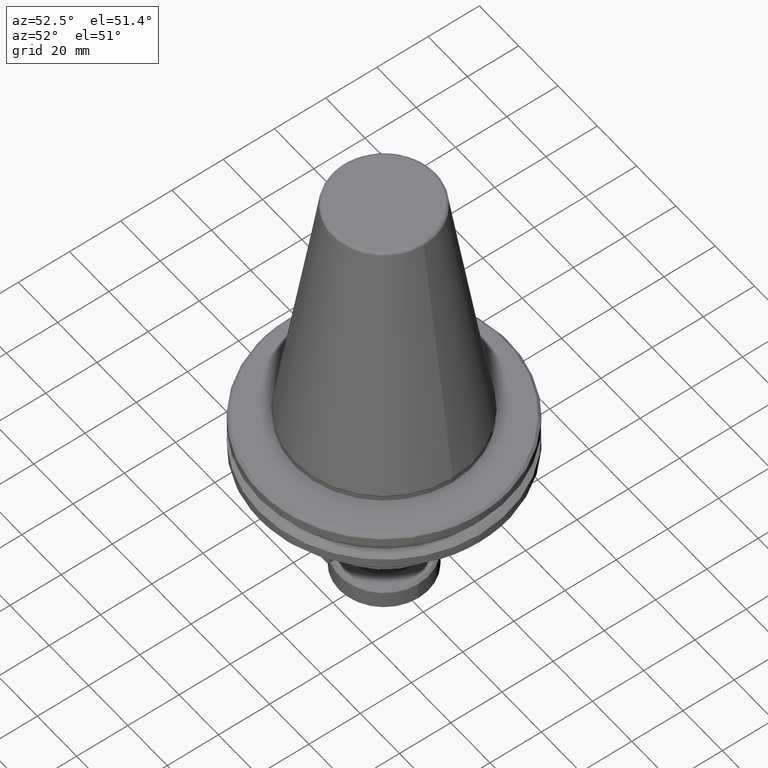
[diagram: clean part render]
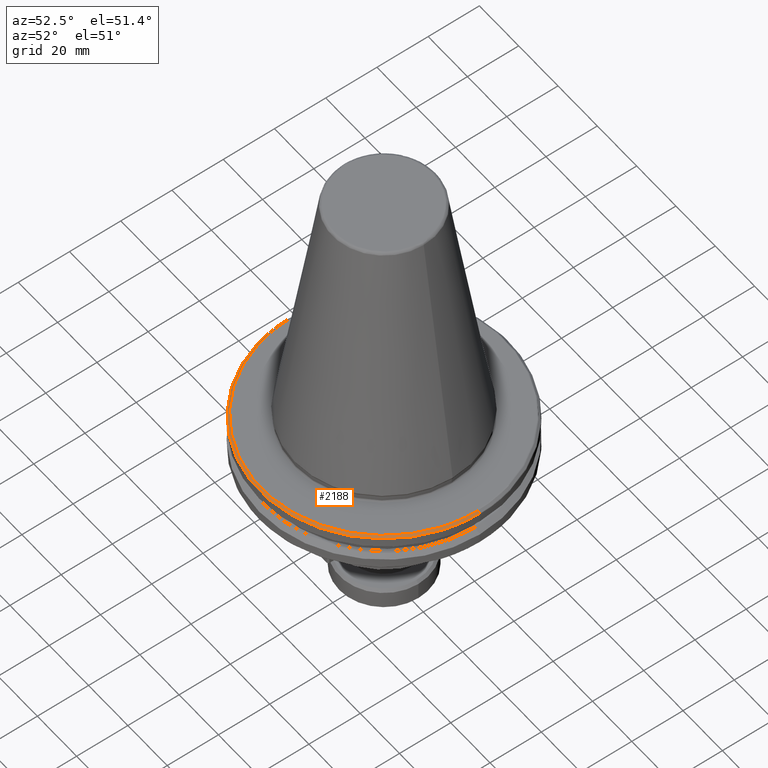
[diagram: same view with one face highlighted and labeled with its STEP entity id]
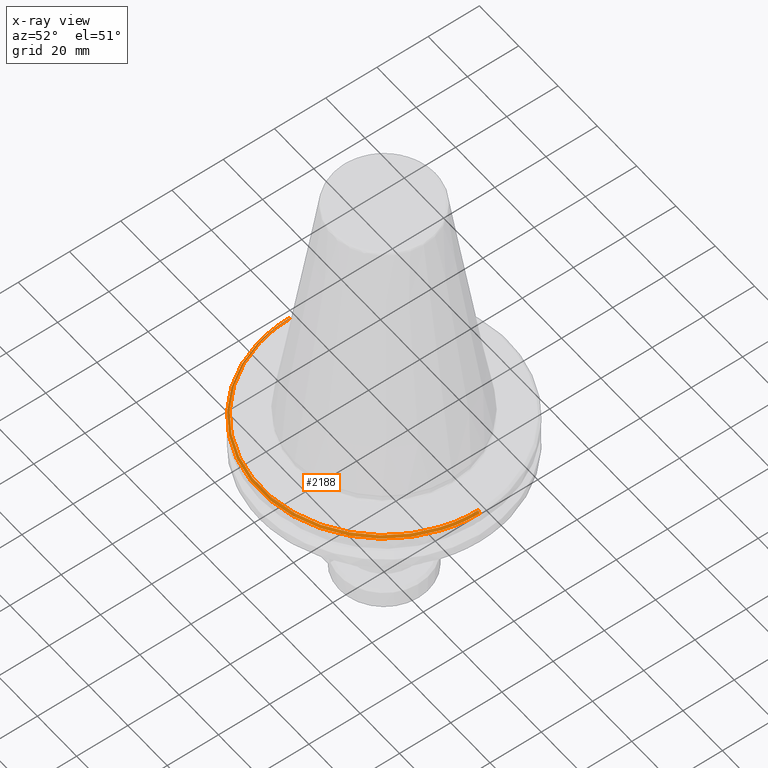
[diagram: x-ray of the same camera — body ghosted, the highlighted face saturated]
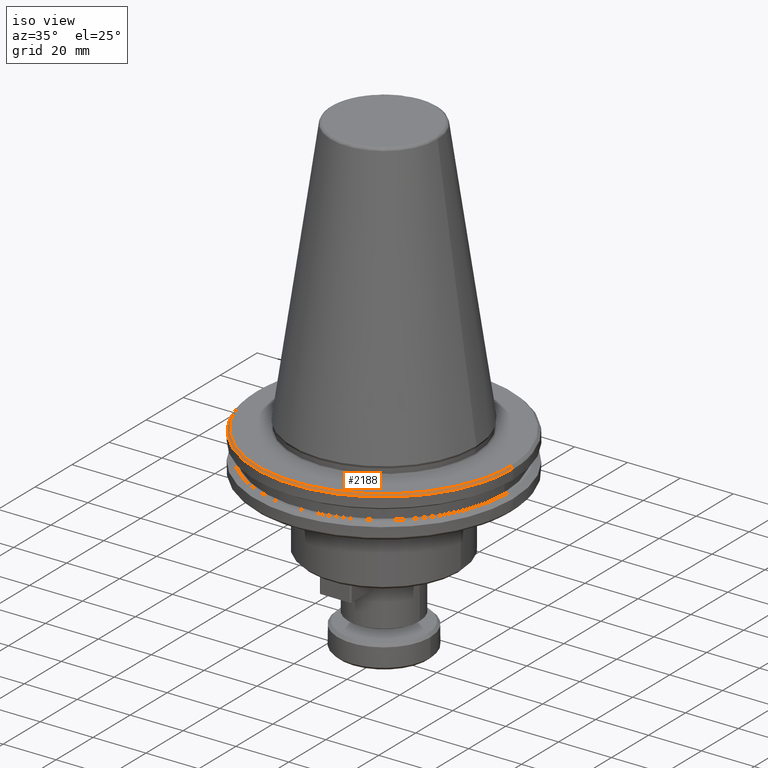
[diagram: same view with one face highlighted and labeled with its STEP entity id]
A machine part, auxiliary view. The second image highlights one B-rep face of the part: STEP entity #2188.
The next image is the same camera in x-ray: the body ghosted, the highlighted face saturated — about 0% of this face is hidden behind the body in this view.
A second angle (iso view) of the same face is appended — the face is thin or edge-on in the first view.
In plain terms, the highlighted conical surface has half-angle 45 deg.
Its self-contained STEP definition (entity closure, byte-faithful):
#53 = DIRECTION ( 'NONE',  ( -0.0000000000000000000, -0.0000000000000000000, 1.000000000000000000 ) ) ;
#126 = CIRCLE ( 'NONE', #1129, 47.86715728752538700 ) ;
#296 = CIRCLE ( 'NONE', #3582, 48.63284271247462000 ) ;
#309 = DIRECTION ( 'NONE',  ( -1.000000000000000000, 0.0000000000000000000, 0.0000000000000000000 ) ) ;
#495 = CARTESIAN_POINT ( 'NONE',  ( 0.0000000000000000000, 0.0000000000000000000, -4.082842712474610300 ) ) ;
#607 = DIRECTION ( 'NONE',  ( -1.000000000000000000, 0.0000000000000000000, 0.0000000000000000000 ) ) ;
#621 = DIRECTION ( 'NONE',  ( -0.0000000000000000000, -0.0000000000000000000, -1.000000000000000000 ) ) ;
#622 = CARTESIAN_POINT ( 'NONE',  ( 0.0000000000000000000, 0.0000000000000000000, -3.317157287525379400 ) ) ;
#785 = DIRECTION ( 'NONE',  ( -1.000000000000000000, 0.0000000000000000000, 0.0000000000000000000 ) ) ;
#795 = ORIENTED_EDGE ( 'NONE', *, *, #1842, .T. ) ;
#797 = DIRECTION ( 'NONE',  ( 0.0000000000000000000, 0.0000000000000000000, -1.000000000000000000 ) ) ;
#866 = VERTEX_POINT ( 'NONE', #3418 ) ;
#922 = ORIENTED_EDGE ( 'NONE', *, *, #2128, .F. ) ;
#1021 = EDGE_CURVE ( 'NONE', #1218, #3126, #1788, .T. ) ;
#1083 = CARTESIAN_POINT ( 'NONE',  ( 0.0000000000000000000, 0.0000000000000000000, -3.317157287525382500 ) ) ;
#1129 = AXIS2_PLACEMENT_3D ( 'NONE', #1083, #1403, #3733 ) ;
#1203 = CIRCLE ( 'NONE', #3902, 47.86715728752538700 ) ;
#1218 = VERTEX_POINT ( 'NONE', #3823 ) ;
#1403 = DIRECTION ( 'NONE',  ( 0.0000000000000000000, 0.0000000000000000000, 1.000000000000000000 ) ) ;
#1477 = DIRECTION ( 'NONE',  ( -1.000000000000000000, 0.0000000000000000000, 0.0000000000000000000 ) ) ;
#1532 = VERTEX_POINT ( 'NONE', #2087 ) ;
#1624 = FACE_OUTER_BOUND ( 'NONE', #1703, .T. ) ;
#1627 = AXIS2_PLACEMENT_3D ( 'NONE', #1685, #3981, #2039 ) ;
#1652 = AXIS2_PLACEMENT_3D ( 'NONE', #622, #621, #607 ) ;
#1685 = CARTESIAN_POINT ( 'NONE',  ( 0.0000000000000000000, 0.0000000000000000000, -4.082842712474610300 ) ) ;
#1703 = EDGE_LOOP ( 'NONE', ( #2822, #795, #922, #3643, #3633, #4106, #1831, #1848 ) ) ;
#1788 = LINE ( 'NONE', #3339, #4234 ) ;
#1831 = ORIENTED_EDGE ( 'NONE', *, *, #2522, .T. ) ;
#1842 = EDGE_CURVE ( 'NONE', #1218, #3712, #1953, .T. ) ;
#1848 = ORIENTED_EDGE ( 'NONE', *, *, #2182, .F. ) ;
#1859 = CARTESIAN_POINT ( 'NONE',  ( 48.63284271247462700, 5.955805516126873700E-015, -4.082842712474610300 ) ) ;
#1953 = CIRCLE ( 'NONE', #1652, 47.86715728752538700 ) ;
#1962 = CARTESIAN_POINT ( 'NONE',  ( -47.86715728752539400, 0.0000000000000000000, -3.317157287525379400 ) ) ;
#1965 = VERTEX_POINT ( 'NONE', #3997 ) ;
#2039 = DIRECTION ( 'NONE',  ( -1.000000000000000000, 0.0000000000000000000, 0.0000000000000000000 ) ) ;
#2051 = CARTESIAN_POINT ( 'NONE',  ( 0.0000000000000000000, 0.0000000000000000000, -4.082842712474610300 ) ) ;
#2070 = CONICAL_SURFACE ( 'NONE', #3100, 48.63284271247462700, 0.7853981633974517200 ) ;
#2075 = AXIS2_PLACEMENT_3D ( 'NONE', #2051, #53, #2385 ) ;
#2087 = CARTESIAN_POINT ( 'NONE',  ( -46.75688530442438700, -13.37710981210807600, -4.082842712474610300 ) ) ;
#2116 = LINE ( 'NONE', #3030, #4185 ) ;
#2128 = EDGE_CURVE ( 'NONE', #1965, #3712, #126, .T. ) ;
#2182 = EDGE_CURVE ( 'NONE', #3126, #866, #296, .T. ) ;
#2188 = ADVANCED_FACE ( 'NONE', ( #1624 ), #2070, .T. ) ;
#2266 = VERTEX_POINT ( 'NONE', #4103 ) ;
#2313 = DIRECTION ( 'NONE',  ( -0.0000000000000000000, -0.0000000000000000000, -1.000000000000000000 ) ) ;
#2385 = DIRECTION ( 'NONE',  ( -1.000000000000000000, 0.0000000000000000000, 1.783489694641929500E-017 ) ) ;
#2413 = EDGE_CURVE ( 'NONE', #1965, #2900, #1203, .T. ) ;
#2506 = EDGE_CURVE ( 'NONE', #1532, #2266, #3663, .T. ) ;
#2522 = EDGE_CURVE ( 'NONE', #1532, #866, #3408, .T. ) ;
#2822 = ORIENTED_EDGE ( 'NONE', *, *, #1021, .F. ) ;
#2900 = VERTEX_POINT ( 'NONE', #1962 ) ;
#3030 = CARTESIAN_POINT ( 'NONE',  ( -48.63284271247462700, 0.0000000000000000000, -4.082842712474612100 ) ) ;
#3077 = DIRECTION ( 'NONE',  ( -0.7071067811865499000, 0.0000000000000000000, -0.7071067811865451300 ) ) ;
#3100 = AXIS2_PLACEMENT_3D ( 'NONE', #4109, #797, #785 ) ;
#3126 = VERTEX_POINT ( 'NONE', #1859 ) ;
#3339 = CARTESIAN_POINT ( 'NONE',  ( 48.63284271247462700, 5.955805516126873700E-015, -4.082842712474612100 ) ) ;
#3340 = DIRECTION ( 'NONE',  ( 0.7071067811865499000, 8.659560562354961200E-017, -0.7071067811865451300 ) ) ;
#3350 = EDGE_CURVE ( 'NONE', #2900, #2266, #2116, .T. ) ;
#3408 = CIRCLE ( 'NONE', #2075, 48.63284271247462700 ) ;
#3418 = CARTESIAN_POINT ( 'NONE',  ( 46.77822952304546800, -13.30227924024949500, -4.082842712474610300 ) ) ;
#3424 = CARTESIAN_POINT ( 'NONE',  ( 45.94369906146665300, -13.43284271247462800, -3.317157287525379400 ) ) ;
#3582 = AXIS2_PLACEMENT_3D ( 'NONE', #495, #3798, #1477 ) ;
#3633 = ORIENTED_EDGE ( 'NONE', *, *, #3350, .T. ) ;
#3643 = ORIENTED_EDGE ( 'NONE', *, *, #2413, .T. ) ;
#3663 = CIRCLE ( 'NONE', #1627, 48.63284271247462000 ) ;
#3712 = VERTEX_POINT ( 'NONE', #3424 ) ;
#3733 = DIRECTION ( 'NONE',  ( 1.000000000000000000, 0.0000000000000000000, 0.0000000000000000000 ) ) ;
#3798 = DIRECTION ( 'NONE',  ( -0.0000000000000000000, -0.0000000000000000000, -1.000000000000000000 ) ) ;
#3823 = CARTESIAN_POINT ( 'NONE',  ( 47.86715728752539400, 5.862036095645087100E-015, -3.317157287525379400 ) ) ;
#3902 = AXIS2_PLACEMENT_3D ( 'NONE', #4229, #2313, #309 ) ;
#3981 = DIRECTION ( 'NONE',  ( -0.0000000000000000000, -0.0000000000000000000, -1.000000000000000000 ) ) ;
#3997 = CARTESIAN_POINT ( 'NONE',  ( -45.94369906146666000, -13.43284271247459700, -3.317157287525379400 ) ) ;
#4103 = CARTESIAN_POINT ( 'NONE',  ( -48.63284271247462700, 0.0000000000000000000, -4.082842712474610300 ) ) ;
#4106 = ORIENTED_EDGE ( 'NONE', *, *, #2506, .F. ) ;
#4109 = CARTESIAN_POINT ( 'NONE',  ( 0.0000000000000000000, 0.0000000000000000000, -4.082842712474612100 ) ) ;
#4185 = VECTOR ( 'NONE', #3077, 1000.000000000000100 ) ;
#4229 = CARTESIAN_POINT ( 'NONE',  ( 0.0000000000000000000, 0.0000000000000000000, -3.317157287525379400 ) ) ;
#4234 = VECTOR ( 'NONE', #3340, 1000.000000000000100 ) ;